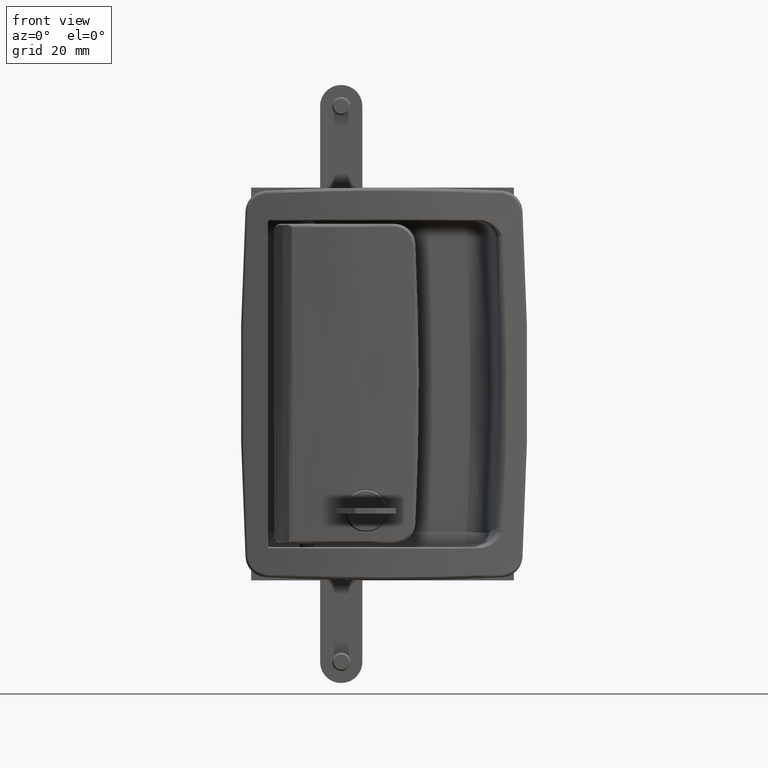
[diagram: clean part render]
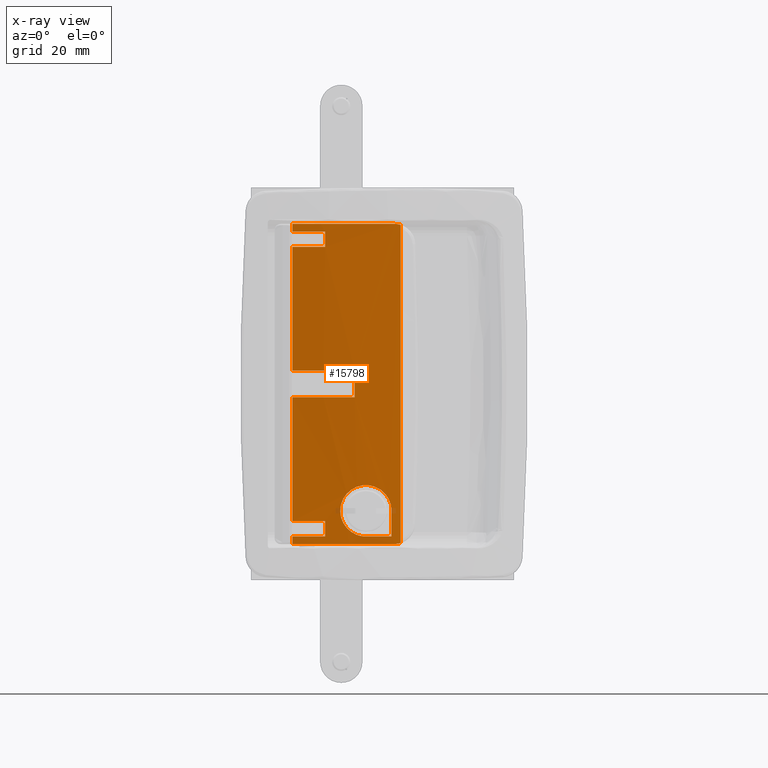
[diagram: x-ray — body ghosted, one internal face saturated and labeled with its STEP entity id]
A machine part, front view, then the same camera in x-ray: the body is ghosted and one INTERNAL B-rep face — a face not visible from any outside direction — is saturated and labeled: STEP entity #15798.
In plain terms, the highlighted face is a freeform B-spline surface patch.
Its self-contained STEP definition (entity closure, byte-faithful):
#12522=CARTESIAN_POINT('',(50.0,-8.183440423382290,-42.0));
#12523=VERTEX_POINT('',#12522);
#12524=CARTESIAN_POINT('',(41.500000000000000,-8.104596908765110,-50.500000000000000));
#12525=VERTEX_POINT('',#12524);
#12526=CARTESIAN_POINT('',(50.0,-8.183440423382290,-42.0));
#12527=CARTESIAN_POINT('',(50.000000000000007,-8.183440423382294,-41.578565345394111));
#12528=CARTESIAN_POINT('',(49.968835190658261,-8.183860602666623,-41.162438872962262));
#12529=CARTESIAN_POINT('',(49.846752889369441,-8.185418316032587,-40.340363192786022));
#12530=CARTESIAN_POINT('',(49.755829124335882,-8.186556384634660,-39.934415054430161));
#12531=CARTESIAN_POINT('',(49.603948876484608,-8.188274173420346,-39.433490241899790));
#12532=CARTESIAN_POINT('',(49.571651779435527,-8.188632158229071,-39.333632460621047));
#12533=CARTESIAN_POINT('',(49.503152966270349,-8.189371704443785,-39.134581897524072));
#12534=CARTESIAN_POINT('',(49.467040099378572,-8.189752258100034,-39.035667691031769));
#12535=CARTESIAN_POINT('',(49.353720377664267,-8.190910770407468,-38.742232027621178));
#12536=CARTESIAN_POINT('',(49.271331179368502,-8.191707998483873,-38.550400387206857));
#12537=CARTESIAN_POINT('',(49.004088886582579,-8.194090280882961,-37.986030252443719));
#12538=CARTESIAN_POINT('',(48.799267031715111,-8.195669595125180,-37.624557851324226));
#12539=CARTESIAN_POINT('',(48.451873362844822,-8.197634975216335,-37.104603688551698));
#12540=CARTESIAN_POINT('',(48.329355637338722,-8.198222018620580,-36.935009309321487));
#12541=CARTESIAN_POINT('',(48.135226233184142,-8.198942019147866,-36.686354348101261));
#12542=CARTESIAN_POINT('',(48.068792699523662,-8.199154954145708,-36.604448599198328));
#12543=CARTESIAN_POINT('',(47.933584904324590,-8.199514028819117,-36.443922451328163));
#12544=CARTESIAN_POINT('',(47.864675925476682,-8.199660712760982,-36.365125463092362));
#12545=CARTESIAN_POINT('',(47.513695894695140,-8.200208382535834,-35.978369604944973));
#12546=CARTESIAN_POINT('',(47.212423283359520,-8.200054683055496,-35.691981322300613));
#12547=CARTESIAN_POINT('',(46.730227647302321,-8.198498531655568,-35.296423446471827));
#12548=CARTESIAN_POINT('',(46.564427591374908,-8.197758397962225,-35.170264485424802));
#12549=CARTESIAN_POINT('',(46.307994555496947,-8.196254827066918,-34.989713496500727));
#12550=CARTESIAN_POINT('',(46.221226735779076,-8.195688018047049,-34.930979220444009));
#12551=CARTESIAN_POINT('',(46.045072423971440,-8.194412149841998,-34.816452594067208));
#12552=CARTESIAN_POINT('',(45.955552013221499,-8.193701709962335,-34.760587907662639));
#12553=CARTESIAN_POINT('',(45.504953857992327,-8.189798798083125,-34.490882637846681));
#12554=CARTESIAN_POINT('',(45.132577916417112,-8.185540798971578,-34.304095498267422));
#12555=CARTESIAN_POINT('',(44.364827628029822,-8.174346837434015,-33.986553108661312));
#12556=CARTESIAN_POINT('',(43.969452973127026,-8.167412423814355,-33.855798551781561));
#12557=CARTESIAN_POINT('',(43.460405214775172,-8.156788492083539,-33.728493193809221));
#12558=CARTESIAN_POINT('',(43.357633775951577,-8.154560708558556,-33.704806032041510));
#12559=CARTESIAN_POINT('',(43.151960059214858,-8.149932985855227,-33.661410540482890));
#12560=CARTESIAN_POINT('',(43.049021245124187,-8.147532709840410,-33.641682785517588));
#12561=CARTESIAN_POINT('',(42.739903762704323,-8.140071230520903,-33.588319278392262));
#12562=CARTESIAN_POINT('',(42.533424474805337,-8.134749383093119,-33.560495351547502));
#12563=CARTESIAN_POINT('',(41.912806359305158,-8.117729837732723,-33.499858216757247));
#12564=CARTESIAN_POINT('',(41.497493735697951,-8.104978416624412,-33.489757798309448));
#12565=CARTESIAN_POINT('',(40.976370498096642,-8.087241964351280,-33.515502287522480));
#12566=CARTESIAN_POINT('',(40.872046213674011,-8.083604793539678,-33.522579387529639));
#12567=CARTESIAN_POINT('',(40.663195667036852,-8.076149566868750,-33.540641590118533));
#12568=CARTESIAN_POINT('',(40.558478548760640,-8.072324331289240,-33.551651433384393));
#12569=CARTESIAN_POINT('',(40.245430897341492,-8.060628578963282,-33.590464878997523));
#12570=CARTESIAN_POINT('',(40.038955612872591,-8.052567664136022,-33.623917396738790));
#12571=CARTESIAN_POINT('',(39.426014383242723,-8.027650995289381,-33.746381062059477));
#12572=CARTESIAN_POINT('',(39.025999407928971,-8.010060239334129,-33.857382854031691));
#12573=CARTESIAN_POINT('',(38.438802748188067,-7.982445243466607,-34.067642556317487));
#12574=CARTESIAN_POINT('',(38.245216638793352,-7.973035646624458,-34.145051034116022));
#12575=CARTESIAN_POINT('',(37.862426437544848,-7.953851528913227,-34.314826185260557));
#12576=CARTESIAN_POINT('',(37.672727911240301,-7.944048770245250,-34.407518514284781));
#12577=CARTESIAN_POINT('',(37.119287111702242,-7.914647004133109,-34.703802250513519));
#12578=CARTESIAN_POINT('',(36.768373596651209,-7.894921353692330,-34.926529745552031));
#12579=CARTESIAN_POINT('',(36.101733369655470,-7.855768019816394,-35.421171285925098));
#12580=CARTESIAN_POINT('',(35.786003680550948,-7.836338138458614,-35.693080994324319));
#12581=CARTESIAN_POINT('',(35.414224113097298,-7.812627598319319,-36.064985831139872));
#12582=CARTESIAN_POINT('',(35.341290846049979,-7.807931923066181,-36.140710860445978));
#12583=CARTESIAN_POINT('',(35.198800275943597,-7.798678445554586,-36.294226634241859));
#12584=CARTESIAN_POINT('',(35.129151761065479,-7.794114830409311,-36.372108197931063));
#12585=CARTESIAN_POINT('',(34.924934539110552,-7.780625181815118,-36.609080981656440));
#12586=CARTESIAN_POINT('',(34.795087770287417,-7.771900184356095,-36.771495805899143));
#12587=CARTESIAN_POINT('',(34.424185610514989,-7.746629169858417,-37.271864300903040));
#12588=CARTESIAN_POINT('',(34.201666677521843,-7.730983032912630,-37.622870429956798));
#12589=CARTESIAN_POINT('',(33.955126851098044,-7.713307536861161,-38.083902139640571));
#12590=CARTESIAN_POINT('',(33.907407408736091,-7.709866866001757,-38.177227870703980));
#12591=CARTESIAN_POINT('',(33.815196002066742,-7.703185352969939,-38.366154031499590));
#12592=CARTESIAN_POINT('',(33.770735572863600,-7.699946725940627,-38.461713470053809));
#12593=CARTESIAN_POINT('',(33.643308451545728,-7.690622982951505,-38.749400282589832));
#12594=CARTESIAN_POINT('',(33.565893517769183,-7.684901289514907,-38.943322194247877));
#12595=CARTESIAN_POINT('',(33.355738716022401,-7.669263495133325,-39.531334843174633));
#12596=CARTESIAN_POINT('',(33.244972500276752,-7.660870830720159,-39.931639680296684));
#12597=CARTESIAN_POINT('',(33.122939382525502,-7.651573587197976,-40.544577803699163));
#12598=CARTESIAN_POINT('',(33.089643383513767,-7.649024033995082,-40.750978835621460));
#12599=CARTESIAN_POINT('',(33.051061682397112,-7.646064079165844,-41.063795227139629));
#12600=CARTESIAN_POINT('',(33.040091878281949,-7.645221182813131,-41.168745277729762));
#12601=CARTESIAN_POINT('',(33.022136245284351,-7.643840492976985,-41.378022510305648));
#12602=CARTESIAN_POINT('',(33.015121969358262,-7.643300518927682,-41.482536746579633));
#12603=CARTESIAN_POINT('',(32.989726537227732,-7.641344888596045,-42.004494991757902));
#12604=CARTESIAN_POINT('',(33.000216757415579,-7.642156897425758,-42.420110070094701));
#12605=CARTESIAN_POINT('',(33.061384029228691,-7.646857094652999,-43.040654797866118));
#12606=CARTESIAN_POINT('',(33.089375846657731,-7.649005186498734,-43.247021451696767));
#12607=CARTESIAN_POINT('',(33.142949998272528,-7.653097831436448,-43.555837573807374));
#12608=CARTESIAN_POINT('',(33.162741084834657,-7.654607191349086,-43.658653847358487));
#12609=CARTESIAN_POINT('',(33.206244460876853,-7.657916695586597,-43.864038052488517));
#12610=CARTESIAN_POINT('',(33.230012953835043,-7.659721086233843,-43.966814372562112));
#12611=CARTESIAN_POINT('',(33.357901579558543,-7.669401572062000,-44.476478473457007));
#12612=CARTESIAN_POINT('',(33.489107275739173,-7.679255031113329,-44.871948821937508));
#12613=CARTESIAN_POINT('',(33.807253590576110,-7.702669638757566,-45.639250603591229));
#12614=CARTESIAN_POINT('',(33.994196331147748,-7.716232442208129,-46.011081090220031));
#12615=CARTESIAN_POINT('',(34.263741051564189,-7.735261664139570,-46.460666732161513));
#12616=CARTESIAN_POINT('',(34.319568999332859,-7.739179623189675,-46.549995578570211));
#12617=CARTESIAN_POINT('',(34.434282203301962,-7.747175787204849,-46.726169816857499));
#12618=CARTESIAN_POINT('',(34.493100137175652,-7.751249403194758,-46.812929180999383));
#12619=CARTESIAN_POINT('',(34.673869330274357,-7.763679832357010,-47.069287132890082));
#12620=CARTESIAN_POINT('',(34.800130060170403,-7.772245968116149,-47.234970956918367));
#12621=CARTESIAN_POINT('',(35.195832415177527,-7.798656617429271,-47.716658428148143));
#12622=CARTESIAN_POINT('',(35.482103850056333,-7.817211017008737,-48.017380034962770));
#12623=CARTESIAN_POINT('',(35.868341002771267,-7.841220789017837,-48.367518195790652));
#12624=CARTESIAN_POINT('',(35.947015522671592,-7.846063776365196,-48.436251107407870));
#12625=CARTESIAN_POINT('',(36.107256113090443,-7.855823298524972,-48.571094147344027));
#12626=CARTESIAN_POINT('',(36.188918649247391,-7.860745577814225,-48.637279200076378));
#12627=CARTESIAN_POINT('',(36.437682839413597,-7.875572350457898,-48.831338532231158));
#12628=CARTESIAN_POINT('',(36.607299125615967,-7.885462014381523,-48.953767913247397));
#12629=CARTESIAN_POINT('',(37.127155062737927,-7.915037779022619,-49.300812783840648));
#12630=CARTESIAN_POINT('',(37.488344406992368,-7.934628811790842,-49.505290766063411));
#12631=CARTESIAN_POINT('',(38.051907559815987,-7.963441514082596,-49.771991446467403));
#12632=CARTESIAN_POINT('',(38.243406270608190,-7.972950663811373,-49.854195611981730));
#12633=CARTESIAN_POINT('',(38.633846865692121,-7.991719197350329,-50.004933331407820));
#12634=CARTESIAN_POINT('',(38.833503776475183,-8.001008984140615,-50.073639988175742));
#12635=CARTESIAN_POINT('',(39.434796526846782,-8.028010315168022,-50.255930819080653));
#12636=CARTESIAN_POINT('',(39.840784456966830,-8.044960272946437,-50.346834386787023));
#12637=CARTESIAN_POINT('',(40.662776065446437,-8.076553896640442,-50.468866310321808));
#12638=CARTESIAN_POINT('',(41.078778831091753,-8.091198254029040,-50.500000000000007));
#12639=CARTESIAN_POINT('',(41.500000000000007,-8.104596908765130,-50.500000000000000));
#12640=B_SPLINE_CURVE_WITH_KNOTS('',3,(#12526,#12527,#12528,#12529,#12530,#12531,#12532,#12533,#12534,#12535,#12536,#12537,#12538,#12539,#12540,#12541,#12542,#12543,#12544,#12545,#12546,#12547,#12548,#12549,#12550,#12551,#12552,#12553,#12554,#12555,#12556,#12557,#12558,#12559,#12560,#12561,#12562,#12563,#12564,#12565,#12566,#12567,#12568,#12569,#12570,#12571,#12572,#12573,#12574,#12575,#12576,#12577,#12578,#12579,#12580,#12581,#12582,#12583,#12584,#12585,#12586,#12587,#12588,#12589,#12590,#12591,#12592,#12593,#12594,#12595,#12596,#12597,#12598,#12599,#12600,#12601,#12602,#12603,#12604,#12605,#12606,#12607,#12608,#12609,#12610,#12611,#12612,#12613,#12614,#12615,#12616,#12617,#12618,#12619,#12620,#12621,#12622,#12623,#12624,#12625,#12626,#12627,#12628,#12629,#12630,#12631,#12632,#12633,#12634,#12635,#12636,#12637,#12638,#12639),.UNSPECIFIED.,.F.,.U.,(4,2,2,2,2,2,2,2,2,2,2,2,2,2,2,2,2,2,2,2,2,2,2,2,2,2,2,2,2,2,2,2,2,2,2,2,2,2,2,2,2,2,2,2,2,2,2,2,2,2,2,2,2,2,2,2,4),(0.0,0.031250000000002,0.062500000000004,0.070312500000004,0.078125000000005,0.093750000000005,0.125000000000007,0.140625000000007,0.148437500000008,0.156250000000008,0.187500000000010,0.203125000000011,0.210937500000011,0.218750000000012,0.250000000000013,0.281250000000015,0.289062500000016,0.296875000000016,0.312500000000016,0.343750000000017,0.351562500000017,0.359375000000018,0.375000000000019,0.406250000000020,0.421875000000021,0.437500000000021,0.468750000000023,0.500000000000024,0.507812500000024,0.515625000000025,0.531250000000025,0.562500000000025,0.570312500000025,0.578125000000025,0.593750000000025,0.625000000000026,0.640625000000027,0.648437500000027,0.656250000000026,0.687500000000025,0.703125000000024,0.710937500000023,0.718750000000023,0.750000000000019,0.781250000000016,0.789062500000015,0.796875000000015,0.812500000000014,0.843750000000012,0.851562500000011,0.859375000000010,0.875000000000009,0.906250000000007,0.921875000000006,0.937500000000005,0.968750000000002,1.0),.UNSPECIFIED.);
#12641=EDGE_CURVE('',#12523,#12525,#12640,.T.);
#12663=CARTESIAN_POINT('',(50.0,-8.183440423382290,-50.500000000000000));
#12664=VERTEX_POINT('',#12663);
#12670=CARTESIAN_POINT('',(50.0,-8.183440423382290,-50.500000000000000));
#12671=CARTESIAN_POINT('',(47.166554411665793,-8.220981695677830,-50.499999999999993));
#12672=CARTESIAN_POINT('',(44.332261942613670,-8.194690858664901,-50.500000000000043));
#12673=CARTESIAN_POINT('',(41.500000000000000,-8.104596908765110,-50.500000000000000));
#12674=B_SPLINE_CURVE_WITH_KNOTS('',3,(#12670,#12671,#12672,#12673),.UNSPECIFIED.,.F.,.U.,(4,4),(5.206768E-011,8.501087186553770),.UNSPECIFIED.);
#12675=EDGE_CURVE('',#12664,#12525,#12674,.T.);
#12688=CARTESIAN_POINT('',(50.0,-8.183440423382290,-42.0));
#12689=CARTESIAN_POINT('',(50.0,-8.183440423382290,-50.500000000000000));
#12690=QUASI_UNIFORM_CURVE('',1,(#12688,#12689),.UNSPECIFIED.,.F.,.U.);
#12691=EDGE_CURVE('',#12523,#12664,#12690,.T.);
#14283=CARTESIAN_POINT('',(50.893822555669999,-8.169481475120840,-52.999999999724700));
#14284=VERTEX_POINT('',#14283);
#14290=CARTESIAN_POINT('',(53.029306959477999,-8.118981389351818,-52.666311300668603));
#14291=VERTEX_POINT('',#14290);
#14292=CARTESIAN_POINT('',(50.893822555669999,-8.169481475120840,-52.999999999724700));
#14293=CARTESIAN_POINT('',(51.617285696081808,-8.156371900067077,-53.000197565848907));
#14294=CARTESIAN_POINT('',(52.340566892598048,-8.139270519850081,-52.887258342511053));
#14295=CARTESIAN_POINT('',(53.029306959477999,-8.118981389351818,-52.666311300668603));
#14296=B_SPLINE_CURVE_WITH_KNOTS('',3,(#14292,#14293,#14294,#14295),.UNSPECIFIED.,.F.,.U.,(4,4),(0.000000011557547,2.170712353050040),.UNSPECIFIED.);
#14297=EDGE_CURVE('',#14284,#14291,#14296,.T.);
#14390=CARTESIAN_POINT('',(17.135004454595400,-5.741132670063000,-52.999999999724700));
#14391=VERTEX_POINT('',#14390);
#14399=CARTESIAN_POINT('',(50.893822555669999,-8.169481475120840,-52.999999999724700));
#14400=CARTESIAN_POINT('',(39.598436232229353,-8.373110391016825,-52.999999999724757));
#14401=CARTESIAN_POINT('',(28.284928865014191,-7.559695992227859,-52.999999999724871));
#14402=CARTESIAN_POINT('',(17.135004454595400,-5.741132670063000,-52.999999999724700));
#14403=B_SPLINE_CURVE_WITH_KNOTS('',3,(#14399,#14400,#14401,#14402),.UNSPECIFIED.,.F.,.U.,(4,4),(9.469758E-010,33.891579768049240),.UNSPECIFIED.);
#14404=EDGE_CURVE('',#14284,#14391,#14403,.T.);
#14541=CARTESIAN_POINT('',(50.893822555685603,-8.169481475120561,52.999999999683197));
#14542=VERTEX_POINT('',#14541);
#14548=CARTESIAN_POINT('',(17.135004454595400,-5.741132670063000,52.999999999683197));
#14549=VERTEX_POINT('',#14548);
#14550=CARTESIAN_POINT('',(50.893822555685603,-8.169481475120561,52.999999999683197));
#14551=CARTESIAN_POINT('',(39.598409292192201,-8.373481141787000,52.999999999683340));
#14552=CARTESIAN_POINT('',(28.284955916952359,-7.559360091471564,52.999999999683183));
#14553=CARTESIAN_POINT('',(17.135004454595400,-5.741132670063000,52.999999999683197));
#14554=B_SPLINE_CURVE_WITH_KNOTS('',3,(#14550,#14551,#14552,#14553),.UNSPECIFIED.,.F.,.U.,(4,4),(9.464785E-010,33.891579768064872),.UNSPECIFIED.);
#14555=EDGE_CURVE('',#14542,#14549,#14554,.T.);
#14645=CARTESIAN_POINT('',(53.029306959477999,-8.118981389351818,52.666311300506997));
#14646=VERTEX_POINT('',#14645);
#14657=CARTESIAN_POINT('',(53.029306959477999,-8.118981389351818,52.666311300506997));
#14658=CARTESIAN_POINT('',(52.340562121318868,-8.139323636908982,52.887187221424433));
#14659=CARTESIAN_POINT('',(51.617299207064100,-8.156430343089197,53.000285518581777));
#14660=CARTESIAN_POINT('',(50.893822555685603,-8.169481475120561,52.999999999683197));
#14661=B_SPLINE_CURVE_WITH_KNOTS('',3,(#14657,#14658,#14659,#14660),.UNSPECIFIED.,.F.,.U.,(4,4),(0.000000011561649,2.170713791909563),.UNSPECIFIED.);
#14662=EDGE_CURVE('',#14646,#14542,#14661,.T.);
#14672=CARTESIAN_POINT('',(17.135004454595400,-5.741132670062910,-50.500000000000000));
#14673=VERTEX_POINT('',#14672);
#14674=CARTESIAN_POINT('',(27.999999999988852,-7.189856117119351,-50.500000000000000));
#14675=VERTEX_POINT('',#14674);
#14676=CARTESIAN_POINT('',(17.135004454595400,-5.741132670062910,-50.500000000000000));
#14677=CARTESIAN_POINT('',(20.741625652111232,-6.329104808307127,-50.499999999999943));
#14678=CARTESIAN_POINT('',(24.365325958119140,-6.812279381227325,-50.500000000000007));
#14679=CARTESIAN_POINT('',(27.999999999988852,-7.189856117119351,-50.500000000000000));
#14680=B_SPLINE_CURVE_WITH_KNOTS('',3,(#14676,#14677,#14678,#14679),.UNSPECIFIED.,.F.,.U.,(4,4),(7.183409E-011,10.962702711517130),.UNSPECIFIED.);
#14681=EDGE_CURVE('',#14673,#14675,#14680,.T.);
#14758=CARTESIAN_POINT('',(17.135004454595400,-5.741132670062910,-45.400000000000013));
#14759=VERTEX_POINT('',#14758);
#14767=CARTESIAN_POINT('',(27.999999999988852,-7.189856117119351,-45.400000000000013));
#14768=VERTEX_POINT('',#14767);
#14769=CARTESIAN_POINT('',(17.135004454595400,-5.741132670062910,-45.400000000000013));
#14770=CARTESIAN_POINT('',(20.741625652111232,-6.329104808307129,-45.399999999999871));
#14771=CARTESIAN_POINT('',(24.365325958119119,-6.812279381227321,-45.400000000000112));
#14772=CARTESIAN_POINT('',(27.999999999988852,-7.189856117119351,-45.400000000000013));
#14773=B_SPLINE_CURVE_WITH_KNOTS('',3,(#14769,#14770,#14771,#14772),.UNSPECIFIED.,.F.,.U.,(4,4),(7.183409E-011,10.962702711517130),.UNSPECIFIED.);
#14774=EDGE_CURVE('',#14759,#14768,#14773,.T.);
#14893=CARTESIAN_POINT('',(27.999999999988852,-7.189856117119351,-45.400000000000013));
#14894=CARTESIAN_POINT('',(27.999999999988852,-7.189856117119351,-50.500000000000000));
#14895=QUASI_UNIFORM_CURVE('',1,(#14893,#14894),.UNSPECIFIED.,.F.,.U.);
#14896=EDGE_CURVE('',#14768,#14675,#14895,.T.);
#14906=CARTESIAN_POINT('',(27.999999999988852,-7.189856117119351,50.500000000000000));
#14907=VERTEX_POINT('',#14906);
#14908=CARTESIAN_POINT('',(17.135004454595400,-5.741132670062910,50.500000000000000));
#14909=VERTEX_POINT('',#14908);
#14910=CARTESIAN_POINT('',(27.999999999988852,-7.189856117119351,50.500000000000000));
#14911=CARTESIAN_POINT('',(24.365323801645609,-6.812283628435539,50.499999999999957));
#14912=CARTESIAN_POINT('',(20.741625916384539,-6.329100278493796,50.500000000000057));
#14913=CARTESIAN_POINT('',(17.135004454595400,-5.741132670062910,50.500000000000000));
#14914=B_SPLINE_CURVE_WITH_KNOTS('',3,(#14910,#14911,#14912,#14913),.UNSPECIFIED.,.F.,.U.,(4,4),(7.205792E-011,10.962702711517130),.UNSPECIFIED.);
#14915=EDGE_CURVE('',#14907,#14909,#14914,.T.);
#14990=CARTESIAN_POINT('',(27.999999999988852,-7.189856117119351,45.400000000000013));
#14991=VERTEX_POINT('',#14990);
#14999=CARTESIAN_POINT('',(17.135004454595400,-5.741132670062910,45.400000000000013));
#15000=VERTEX_POINT('',#14999);
#15001=CARTESIAN_POINT('',(27.999999999988852,-7.189856117119351,45.400000000000013));
#15002=CARTESIAN_POINT('',(24.365323801645609,-6.812283628435522,45.399999999999999));
#15003=CARTESIAN_POINT('',(20.741625916384539,-6.329100278493812,45.400000000000027));
#15004=CARTESIAN_POINT('',(17.135004454595400,-5.741132670062910,45.400000000000013));
#15005=B_SPLINE_CURVE_WITH_KNOTS('',3,(#15001,#15002,#15003,#15004),.UNSPECIFIED.,.F.,.U.,(4,4),(7.205792E-011,10.962702711517130),.UNSPECIFIED.);
#15006=EDGE_CURVE('',#14991,#15000,#15005,.T.);
#15125=CARTESIAN_POINT('',(27.999999999988852,-7.189856117119351,45.400000000000013));
#15126=CARTESIAN_POINT('',(27.999999999988852,-7.189856117119351,50.500000000000000));
#15127=QUASI_UNIFORM_CURVE('',1,(#15125,#15126),.UNSPECIFIED.,.F.,.U.);
#15128=EDGE_CURVE('',#14991,#14907,#15127,.T.);
#15200=CARTESIAN_POINT('',(37.794290015901502,-7.950257626811150,4.400000000000000));
#15201=VERTEX_POINT('',#15200);
#15202=CARTESIAN_POINT('',(37.794290015901502,-7.950257626811140,-4.400000000000000));
#15203=VERTEX_POINT('',#15202);
#15204=CARTESIAN_POINT('',(37.794290015901502,-7.950257626811150,4.400000000000000));
#15205=CARTESIAN_POINT('',(37.794290015901502,-7.950257626811140,-4.400000000000000));
#15206=QUASI_UNIFORM_CURVE('',1,(#15204,#15205),.UNSPECIFIED.,.F.,.U.);
#15207=EDGE_CURVE('',#15201,#15203,#15206,.T.);
#15285=CARTESIAN_POINT('',(53.029306959477999,-8.118981389351818,-52.666311300668603));
#15286=CARTESIAN_POINT('',(53.029306959477999,-8.118981389351818,52.666311300506997));
#15287=QUASI_UNIFORM_CURVE('',1,(#15285,#15286),.UNSPECIFIED.,.F.,.U.);
#15288=EDGE_CURVE('',#14291,#14646,#15287,.T.);
#15582=CARTESIAN_POINT('',(17.135004454595400,-5.741132670063000,4.400000000000000));
#15583=VERTEX_POINT('',#15582);
#15584=CARTESIAN_POINT('',(17.135004454595400,-5.741132670063000,4.400000000000000));
#15585=CARTESIAN_POINT('',(17.135004454595400,-5.741132670062910,45.400000000000013));
#15586=QUASI_UNIFORM_CURVE('',1,(#15584,#15585),.UNSPECIFIED.,.F.,.U.);
#15587=EDGE_CURVE('',#15583,#15000,#15586,.T.);
#15680=CARTESIAN_POINT('',(17.135004454595400,-5.741132670063000,-4.400000000000000));
#15681=VERTEX_POINT('',#15680);
#15689=CARTESIAN_POINT('',(17.135004454595400,-5.741132670062910,-45.400000000000013));
#15690=CARTESIAN_POINT('',(17.135004454595400,-5.741132670063000,-4.400000000000000));
#15691=QUASI_UNIFORM_CURVE('',1,(#15689,#15690),.UNSPECIFIED.,.F.,.U.);
#15692=EDGE_CURVE('',#14759,#15681,#15691,.T.);
#15711=CARTESIAN_POINT('',(17.135004454595400,-5.741132670062910,50.500000000000000));
#15712=CARTESIAN_POINT('',(17.135004454595400,-5.741132670063000,52.999999999683197));
#15713=QUASI_UNIFORM_CURVE('',1,(#15711,#15712),.UNSPECIFIED.,.F.,.U.);
#15714=EDGE_CURVE('',#14909,#14549,#15713,.T.);
#15738=CARTESIAN_POINT('',(17.135004454595400,-5.741132670063000,-52.999999999724700));
#15739=CARTESIAN_POINT('',(17.135004454595400,-5.741132670062910,-50.500000000000000));
#15740=QUASI_UNIFORM_CURVE('',1,(#15738,#15739),.UNSPECIFIED.,.F.,.U.);
#15741=EDGE_CURVE('',#14391,#14673,#15740,.T.);
#15747=CARTESIAN_POINT('',(15.363913592965227,-5.443746316543900,55.649999999668402));
#15748=CARTESIAN_POINT('',(15.363913592965227,-5.443746316543900,-55.716249999709554));
#15749=CARTESIAN_POINT('',(34.956864005964690,-8.829556392119429,55.649999999668388));
#15750=CARTESIAN_POINT('',(34.956864005964690,-8.829556392119429,-55.716249999709547));
#15751=CARTESIAN_POINT('',(54.825225272527312,-8.057781596288876,55.649999999668388));
#15752=CARTESIAN_POINT('',(54.825225272527312,-8.057781596288876,-55.716249999709540));
#15760=(BOUNDED_SURFACE()B_SPLINE_SURFACE(1,2,((#15747,#15749,#15751),(#15748,#15750,#15752)),.UNSPECIFIED.,.F.,.F.,.U.)B_SPLINE_SURFACE_WITH_KNOTS((2,2),(3,3),(0.0,111.366249999377900),(0.0,39.656940988106193),.UNSPECIFIED.)GEOMETRIC_REPRESENTATION_ITEM()RATIONAL_B_SPLINE_SURFACE(((0.998202237291531,0.992396517278281,0.997576506405825),(0.998202237291531,0.992396517278281,0.997576506405825)))REPRESENTATION_ITEM('')SURFACE());
#15761=ORIENTED_EDGE('',*,*,#14662,.F.);
#15762=ORIENTED_EDGE('',*,*,#15288,.F.);
#15763=ORIENTED_EDGE('',*,*,#14297,.F.);
#15764=ORIENTED_EDGE('',*,*,#14404,.T.);
#15765=ORIENTED_EDGE('',*,*,#15741,.T.);
#15766=ORIENTED_EDGE('',*,*,#14681,.T.);
#15767=ORIENTED_EDGE('',*,*,#14896,.F.);
#15768=ORIENTED_EDGE('',*,*,#14774,.F.);
#15769=ORIENTED_EDGE('',*,*,#15692,.T.);
#15770=CARTESIAN_POINT('',(37.794290015901502,-7.950257626811140,-4.400000000000000));
#15771=CARTESIAN_POINT('',(30.874257302080618,-7.594016060613924,-4.400000000000012));
#15772=CARTESIAN_POINT('',(23.973905275052271,-6.856101081454452,-4.400000000000003));
#15773=CARTESIAN_POINT('',(17.135004454595400,-5.741132670063000,-4.400000000000000));
#15774=B_SPLINE_CURVE_WITH_KNOTS('',3,(#15770,#15771,#15772,#15773),.UNSPECIFIED.,.F.,.U.,(4,4),(3.502834E-010,20.787579823930699),.UNSPECIFIED.);
#15775=EDGE_CURVE('',#15203,#15681,#15774,.T.);
#15776=ORIENTED_EDGE('',*,*,#15775,.F.);
#15777=ORIENTED_EDGE('',*,*,#15207,.F.);
#15778=CARTESIAN_POINT('',(37.794290015901502,-7.950257626811150,4.400000000000000));
#15779=CARTESIAN_POINT('',(30.874263222426350,-7.593966171561602,4.399999999999973));
#15780=CARTESIAN_POINT('',(23.973898862589010,-6.856150778451823,4.400000000000073));
#15781=CARTESIAN_POINT('',(17.135004454595400,-5.741132670063000,4.400000000000000));
#15782=B_SPLINE_CURVE_WITH_KNOTS('',3,(#15778,#15779,#15780,#15781),.UNSPECIFIED.,.F.,.U.,(4,4),(3.499352E-010,20.787579823930699),.UNSPECIFIED.);
#15783=EDGE_CURVE('',#15201,#15583,#15782,.T.);
#15784=ORIENTED_EDGE('',*,*,#15783,.T.);
#15785=ORIENTED_EDGE('',*,*,#15587,.T.);
#15786=ORIENTED_EDGE('',*,*,#15006,.F.);
#15787=ORIENTED_EDGE('',*,*,#15128,.T.);
#15788=ORIENTED_EDGE('',*,*,#14915,.T.);
#15789=ORIENTED_EDGE('',*,*,#15714,.T.);
#15790=ORIENTED_EDGE('',*,*,#14555,.F.);
#15791=EDGE_LOOP('',(#15761,#15762,#15763,#15764,#15765,#15766,#15767,#15768,#15769,#15776,#15777,#15784,#15785,#15786,#15787,#15788,#15789,#15790));
#15792=FACE_OUTER_BOUND('',#15791,.T.);
#15793=ORIENTED_EDGE('',*,*,#12691,.F.);
#15794=ORIENTED_EDGE('',*,*,#12641,.T.);
#15795=ORIENTED_EDGE('',*,*,#12675,.F.);
#15796=EDGE_LOOP('',(#15793,#15794,#15795));
#15797=FACE_BOUND('',#15796,.T.);
#15798=ADVANCED_FACE('',(#15792,#15797),#15760,.F.);